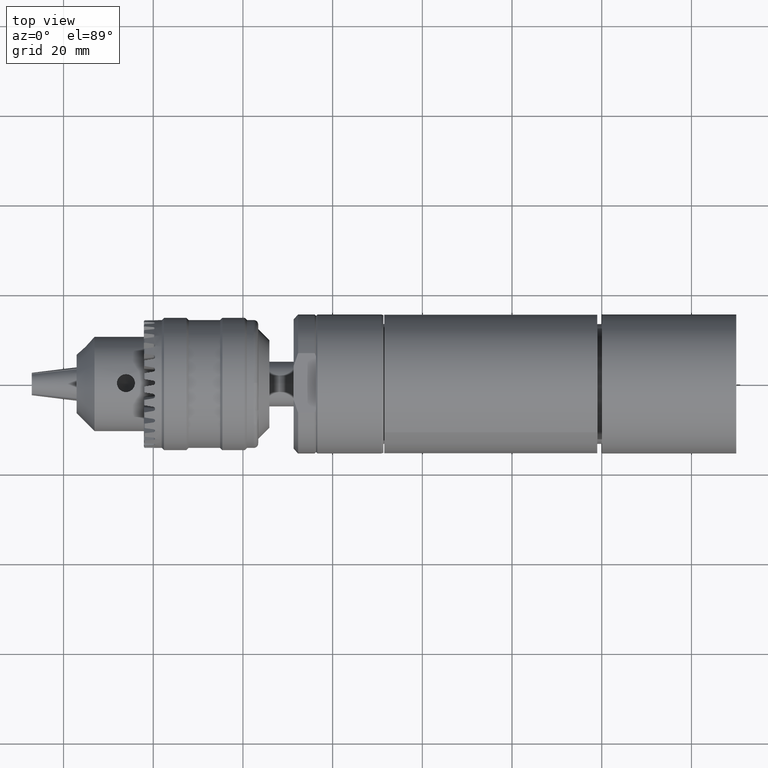
[diagram: clean part render]
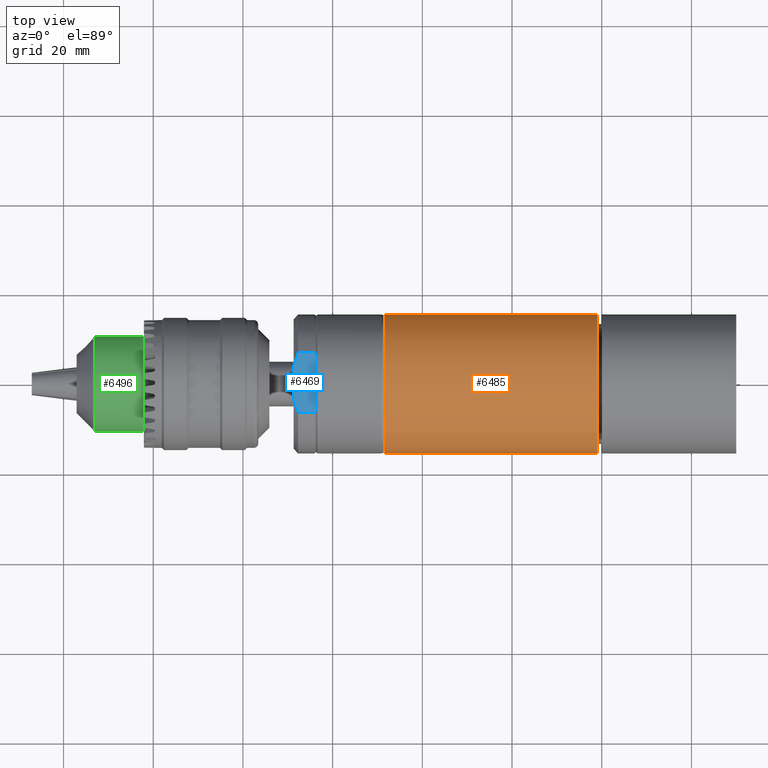
[diagram: same view with three faces highlighted in distinct colors, each labeled with its STEP entity id]
A machine part, top view with three faces highlighted in distinct colors.
Their STEP definitions:

[orange] entity #6485 — the highlighted cylindrical surface (bore or boss wall) has radius 15.5 mm, axis along (1, 0, 0).
#481=LINE('',#9968,#976);
#976=VECTOR('',#7922,15.5);
#1276=CYLINDRICAL_SURFACE('',#6897,15.5);
#1801=FACE_OUTER_BOUND('',#2162,.T.);
#2162=EDGE_LOOP('',(#4828,#4829,#4830,#4831,#4832,#4833));
#2458=CIRCLE('',#6895,15.5);
#2459=CIRCLE('',#6896,15.5);
#2460=CIRCLE('',#6898,15.5);
#2461=CIRCLE('',#6899,15.5);
#2862=VERTEX_POINT('',#9959);
#2863=VERTEX_POINT('',#9960);
#2864=VERTEX_POINT('',#9964);
#2865=VERTEX_POINT('',#9965);
#3590=EDGE_CURVE('',#2862,#2863,#2458,.T.);
#3591=EDGE_CURVE('',#2863,#2862,#2459,.T.);
#3592=EDGE_CURVE('',#2864,#2865,#2460,.T.);
#3593=EDGE_CURVE('',#2865,#2864,#2461,.T.);
#3594=EDGE_CURVE('',#2865,#2863,#481,.T.);
#4828=ORIENTED_EDGE('',*,*,#3592,.F.);
#4829=ORIENTED_EDGE('',*,*,#3593,.F.);
#4830=ORIENTED_EDGE('',*,*,#3594,.T.);
#4831=ORIENTED_EDGE('',*,*,#3591,.T.);
#4832=ORIENTED_EDGE('',*,*,#3590,.T.);
#4833=ORIENTED_EDGE('',*,*,#3594,.F.);
#6485=ADVANCED_FACE('',(#1801),#1276,.T.);
#6895=AXIS2_PLACEMENT_3D('',#9961,#7912,#7913);
#6896=AXIS2_PLACEMENT_3D('',#9962,#7914,#7915);
#6897=AXIS2_PLACEMENT_3D('',#9963,#7916,#7917);
#6898=AXIS2_PLACEMENT_3D('',#9966,#7918,#7919);
#6899=AXIS2_PLACEMENT_3D('',#9967,#7920,#7921);
#7912=DIRECTION('center_axis',(1.,5.25479465073326E-16,4.02107479538517E-16));
#7913=DIRECTION('ref_axis',(9.1590702158168E-17,0.707106781186548,-0.707106781186548));
#7914=DIRECTION('center_axis',(1.,5.25479465073326E-16,4.02107479538517E-16));
#7915=DIRECTION('ref_axis',(9.1590702158168E-17,0.707106781186548,-0.707106781186548));
#7916=DIRECTION('center_axis',(1.,5.25479465073326E-16,4.02107479538517E-16));
#7917=DIRECTION('ref_axis',(9.1590702158168E-17,0.707106781186548,-0.707106781186547));
#7918=DIRECTION('center_axis',(1.,5.25479465073326E-16,4.02107479538517E-16));
#7919=DIRECTION('ref_axis',(9.1590702158168E-17,0.707106781186548,-0.707106781186547));
#7920=DIRECTION('center_axis',(1.,5.25479465073326E-16,4.02107479538517E-16));
#7921=DIRECTION('ref_axis',(9.1590702158168E-17,0.707106781186548,-0.707106781186547));
#7922=DIRECTION('',(-1.,-5.25479465073326E-16,-4.02107479538517E-16));
#9959=CARTESIAN_POINT('',(-48.5,10.9601551083915,-10.9601551083915));
#9960=CARTESIAN_POINT('',(-48.5,-10.9601551083915,10.9601551083915));
#9961=CARTESIAN_POINT('Origin',(-48.5,7.09397277848991E-15,5.42845097376998E-15));
#9962=CARTESIAN_POINT('Origin',(-48.5,7.09397277848991E-15,5.42845097376998E-15));
#9963=CARTESIAN_POINT('Origin',(-24.75,1.95741100739814E-14,1.49785036128098E-14));
#9964=CARTESIAN_POINT('',(-0.999999999999979,10.9601551083915,-10.9601551083915));
#9965=CARTESIAN_POINT('',(-0.999999999999979,-10.9601551083915,10.9601551083915));
#9966=CARTESIAN_POINT('Origin',(-0.999999999999979,3.20542473694729E-14,
2.45285562518495E-14));
#9967=CARTESIAN_POINT('Origin',(-0.999999999999979,3.20542473694729E-14,
2.45285562518495E-14));
#9968=CARTESIAN_POINT('',(-24.75,-10.9601551083915,10.9601551083915));

[blue] entity #6469 — the highlighted planar face has unit normal (0, -0, -1).
#149=(
BOUNDED_CURVE()
B_SPLINE_CURVE(2,(#9884,#9885,#9886),.UNSPECIFIED.,.F.,.F.)
B_SPLINE_CURVE_WITH_KNOTS((3,3),(0.,0.0791681565710261),.UNSPECIFIED.)
CURVE()
GEOMETRIC_REPRESENTATION_ITEM()
RATIONAL_B_SPLINE_CURVE((1.,1.00028485378662,1.))
REPRESENTATION_ITEM('')
);
#150=(
BOUNDED_CURVE()
B_SPLINE_CURVE(2,(#9890,#9891,#9892),.UNSPECIFIED.,.F.,.F.)
B_SPLINE_CURVE_WITH_KNOTS((3,3),(0.,0.304814584649611),.UNSPECIFIED.)
CURVE()
GEOMETRIC_REPRESENTATION_ITEM()
RATIONAL_B_SPLINE_CURVE((1.,1.00463085467902,1.))
REPRESENTATION_ITEM('')
);
#151=(
BOUNDED_CURVE()
B_SPLINE_CURVE(2,(#9896,#9897,#9898),.UNSPECIFIED.,.F.,.F.)
B_SPLINE_CURVE_WITH_KNOTS((3,3),(0.,0.304814584649611),.UNSPECIFIED.)
CURVE()
GEOMETRIC_REPRESENTATION_ITEM()
RATIONAL_B_SPLINE_CURVE((1.,1.00463085467902,1.))
REPRESENTATION_ITEM('')
);
#152=(
BOUNDED_CURVE()
B_SPLINE_CURVE(2,(#9901,#9902,#9903),.UNSPECIFIED.,.F.,.F.)
B_SPLINE_CURVE_WITH_KNOTS((3,3),(0.,0.0791681565710261),.UNSPECIFIED.)
CURVE()
GEOMETRIC_REPRESENTATION_ITEM()
RATIONAL_B_SPLINE_CURVE((1.,1.00028485378662,1.))
REPRESENTATION_ITEM('')
);
#471=LINE('',#9881,#966);
#472=LINE('',#9888,#967);
#473=LINE('',#9894,#968);
#474=LINE('',#9900,#969);
#966=VECTOR('',#7828,10.);
#967=VECTOR('',#7831,10.);
#968=VECTOR('',#7832,10.);
#969=VECTOR('',#7833,10.);
#1785=FACE_OUTER_BOUND('',#2143,.T.);
#2143=EDGE_LOOP('',(#4745,#4746,#4747,#4748,#4749,#4750,#4751,#4752));
#2841=VERTEX_POINT('',#9878);
#2842=VERTEX_POINT('',#9879);
#2843=VERTEX_POINT('',#9883);
#2844=VERTEX_POINT('',#9887);
#2845=VERTEX_POINT('',#9889);
#2846=VERTEX_POINT('',#9893);
#2847=VERTEX_POINT('',#9895);
#2848=VERTEX_POINT('',#9899);
#3555=EDGE_CURVE('',#2841,#2842,#471,.T.);
#3556=EDGE_CURVE('',#2843,#2841,#149,.T.);
#3557=EDGE_CURVE('',#2844,#2843,#472,.T.);
#3558=EDGE_CURVE('',#2845,#2844,#150,.T.);
#3559=EDGE_CURVE('',#2846,#2845,#473,.T.);
#3560=EDGE_CURVE('',#2847,#2846,#151,.T.);
#3561=EDGE_CURVE('',#2848,#2847,#474,.T.);
#3562=EDGE_CURVE('',#2842,#2848,#152,.T.);
#4745=ORIENTED_EDGE('',*,*,#3556,.F.);
#4746=ORIENTED_EDGE('',*,*,#3557,.F.);
#4747=ORIENTED_EDGE('',*,*,#3558,.F.);
#4748=ORIENTED_EDGE('',*,*,#3559,.F.);
#4749=ORIENTED_EDGE('',*,*,#3560,.F.);
#4750=ORIENTED_EDGE('',*,*,#3561,.F.);
#4751=ORIENTED_EDGE('',*,*,#3562,.F.);
#4752=ORIENTED_EDGE('',*,*,#3555,.F.);
#6232=PLANE('',#6858);
#6469=ADVANCED_FACE('',(#1785),#6232,.F.);
#6858=AXIS2_PLACEMENT_3D('',#9882,#7829,#7830);
#7828=DIRECTION('',(9.54437786248571E-17,-1.,1.7185860833431E-16));
#7829=DIRECTION('center_axis',(1.48561984064731E-15,-1.7185860833431E-16,
-1.));
#7830=DIRECTION('ref_axis',(-1.,-9.54437786248573E-17,-1.48561984064731E-15));
#7831=DIRECTION('',(1.,9.54437786248573E-17,1.48561984064731E-15));
#7832=DIRECTION('',(-9.54437786248571E-17,1.,-1.7185860833431E-16));
#7833=DIRECTION('',(-1.,-9.54437786248573E-17,-1.48561984064731E-15));
#9878=CARTESIAN_POINT('',(-63.7,5.91945943477948,14.));
#9879=CARTESIAN_POINT('',(-63.7,-5.91945943477948,14.));
#9881=CARTESIAN_POINT('',(-63.6999999999999,-14.2828568570857,14.));
#9882=CARTESIAN_POINT('Origin',(-68.7,14.2828568570857,14.));
#9883=CARTESIAN_POINT('',(-64.,6.65206734782504,14.));
#9884=CARTESIAN_POINT('Ctrl Pts',(-64.,6.65206734782504,14.));
#9885=CARTESIAN_POINT('Ctrl Pts',(-63.841258723872,6.28218387381187,14.));
#9886=CARTESIAN_POINT('Ctrl Pts',(-63.7,5.91945943477949,14.));
#9887=CARTESIAN_POINT('',(-67.6999999999999,6.65206734782504,14.));
#9888=CARTESIAN_POINT('',(-66.35,6.65206734782504,14.));
#9889=CARTESIAN_POINT('',(-68.7,3.77491721763537,14.));
#9890=CARTESIAN_POINT('Ctrl Pts',(-68.7,3.77491721763537,14.));
#9891=CARTESIAN_POINT('Ctrl Pts',(-68.3379665478608,5.16553978056039,14.));
#9892=CARTESIAN_POINT('Ctrl Pts',(-67.6999999999999,6.65206734782504,14.));
#9893=CARTESIAN_POINT('',(-68.7,-3.77491721763536,14.));
#9894=CARTESIAN_POINT('',(-68.7,12.3289284285429,14.));
#9895=CARTESIAN_POINT('',(-67.6999999999999,-6.65206734782503,14.));
#9896=CARTESIAN_POINT('Ctrl Pts',(-67.6999999999999,-6.65206734782503,14.));
#9897=CARTESIAN_POINT('Ctrl Pts',(-68.3379665478608,-5.16553978056039,14.));
#9898=CARTESIAN_POINT('Ctrl Pts',(-68.7,-3.77491721763536,14.));
#9899=CARTESIAN_POINT('',(-64.,-6.65206734782503,14.));
#9900=CARTESIAN_POINT('',(-66.35,-6.65206734782503,14.));
#9901=CARTESIAN_POINT('Ctrl Pts',(-63.7,-5.91945943477949,14.));
#9902=CARTESIAN_POINT('Ctrl Pts',(-63.841258723872,-6.28218387381186,14.));
#9903=CARTESIAN_POINT('Ctrl Pts',(-64.,-6.65206734782503,14.));

[green] entity #6496 — the highlighted cylindrical surface (bore or boss wall) has radius 10.5 mm, axis along (1, 0, -0).
#97=B_SPLINE_CURVE_WITH_KNOTS('',3,(#10097,#10098,#10099,#10100,#10101,
#10102,#10103,#10104,#10105,#10106),.UNSPECIFIED.,.F.,.F.,(4,2,2,2,4),(0.,
0.0755378860497664,0.151075772099533,0.226610188264522,0.302144604429511),
 .UNSPECIFIED.);
#98=B_SPLINE_CURVE_WITH_KNOTS('',3,(#10107,#10108,#10109,#10110,#10111,
#10112,#10113,#10114,#10115,#10116,#10117,#10118,#10119,#10120,#10121,#10122,
#10123,#10124,#10125,#10126,#10127,#10128,#10129,#10130,#10131,#10132),
 .UNSPECIFIED.,.F.,.F.,(4,2,2,2,2,2,2,2,2,2,2,2,4),(0.302144604429511,0.377679020594501,
0.45321343675949,0.528751322809257,0.604289208859023,0.679827094908789,
0.755364980958556,0.830899397123545,0.906433813288534,0.981968229453524,
1.05750264561851,1.13304053166828,1.20857841771805),.UNSPECIFIED.);
#99=B_SPLINE_CURVE_WITH_KNOTS('',3,(#10135,#10136,#10137,#10138,#10139,
#10140,#10141,#10142,#10143,#10144),.UNSPECIFIED.,.F.,.F.,(4,2,2,2,4),(0.,
0.0755378860497664,0.151075772099533,0.226610188264522,0.302144604429512),
 .UNSPECIFIED.);
#100=B_SPLINE_CURVE_WITH_KNOTS('',3,(#10145,#10146,#10147,#10148,#10149,
#10150,#10151,#10152,#10153,#10154,#10155,#10156,#10157,#10158,#10159,#10160,
#10161,#10162,#10163,#10164,#10165,#10166,#10167,#10168,#10169,#10170),
 .UNSPECIFIED.,.F.,.F.,(4,2,2,2,2,2,2,2,2,2,2,2,4),(0.302144604429512,0.377679020594501,
0.45321343675949,0.528751322809257,0.604289208859023,0.67982709490879,0.755364980958556,
0.830899397123546,0.906433813288535,0.981968229453524,1.05750264561851,
1.13304053166828,1.20857841771805),.UNSPECIFIED.);
#101=B_SPLINE_CURVE_WITH_KNOTS('',3,(#10173,#10174,#10175,#10176,#10177,
#10178,#10179,#10180,#10181,#10182),.UNSPECIFIED.,.F.,.F.,(4,2,2,2,4),(0.,
0.0755378860497664,0.151075772099533,0.226610188264522,0.302144604429512),
 .UNSPECIFIED.);
#102=B_SPLINE_CURVE_WITH_KNOTS('',3,(#10183,#10184,#10185,#10186,#10187,
#10188,#10189,#10190,#10191,#10192,#10193,#10194,#10195,#10196,#10197,#10198,
#10199,#10200,#10201,#10202,#10203,#10204,#10205,#10206,#10207,#10208),
 .UNSPECIFIED.,.F.,.F.,(4,2,2,2,2,2,2,2,2,2,2,2,4),(0.302144604429512,0.377679020594501,
0.45321343675949,0.528751322809257,0.604289208859023,0.67982709490879,0.755364980958556,
0.830899397123545,0.906433813288535,0.981968229453524,1.05750264561851,
1.13304053166828,1.20857841771805),.UNSPECIFIED.);
#489=LINE('',#10081,#984);
#984=VECTOR('',#8044,10.5);
#1280=CYLINDRICAL_SURFACE('',#6932,10.5);
#1683=FACE_BOUND('',#2177,.T.);
#1684=FACE_BOUND('',#2178,.T.);
#1685=FACE_BOUND('',#2179,.T.);
#1812=FACE_OUTER_BOUND('',#2176,.T.);
#2176=EDGE_LOOP('',(#4886,#4887,#4888,#4889,#4890,#4891,#4892,#4893,#4894,
#4895,#4896,#4897,#4898,#4899,#4900,#4901,#4902,#4903,#4904,#4905,#4906,
#4907,#4908,#4909,#4910,#4911,#4912,#4913,#4914,#4915,#4916,#4917,#4918,
#4919,#4920));
#2177=EDGE_LOOP('',(#4921,#4922));
#2178=EDGE_LOOP('',(#4923,#4924));
#2179=EDGE_LOOP('',(#4925,#4926));
#2480=CIRCLE('',#6928,10.5);
#2481=CIRCLE('',#6929,10.5);
#2484=CIRCLE('',#6933,10.5);
#2485=CIRCLE('',#6934,10.5);
#2486=CIRCLE('',#6935,10.5);
#2487=CIRCLE('',#6936,10.5);
#2488=CIRCLE('',#6937,10.5);
#2489=CIRCLE('',#6938,10.5);
#2490=CIRCLE('',#6939,10.5);
#2491=CIRCLE('',#6940,10.5);
#2492=CIRCLE('',#6941,10.5);
#2493=CIRCLE('',#6942,10.5);
#2494=CIRCLE('',#6943,10.5);
#2495=CIRCLE('',#6944,10.5);
#2496=CIRCLE('',#6945,10.5);
#2497=CIRCLE('',#6946,10.5);
#2498=CIRCLE('',#6947,10.5);
#2499=CIRCLE('',#6948,10.5);
#2500=CIRCLE('',#6949,10.5);
#2501=CIRCLE('',#6950,10.5);
#2502=CIRCLE('',#6951,10.5);
#2503=CIRCLE('',#6952,10.5);
#2504=CIRCLE('',#6953,10.5);
#2505=CIRCLE('',#6954,10.5);
#2506=CIRCLE('',#6955,10.5);
#2507=CIRCLE('',#6956,10.5);
#2508=CIRCLE('',#6957,10.5);
#2509=CIRCLE('',#6958,10.5);
#2510=CIRCLE('',#6959,10.5);
#2511=CIRCLE('',#6960,10.5);
#2512=CIRCLE('',#6961,10.5);
#2513=CIRCLE('',#6962,10.5);
#2514=CIRCLE('',#6963,10.5);
#2885=VERTEX_POINT('',#10022);
#2886=VERTEX_POINT('',#10023);
#2889=VERTEX_POINT('',#10032);
#2890=VERTEX_POINT('',#10033);
#2891=VERTEX_POINT('',#10035);
#2892=VERTEX_POINT('',#10037);
#2893=VERTEX_POINT('',#10039);
#2894=VERTEX_POINT('',#10041);
#2895=VERTEX_POINT('',#10043);
#2896=VERTEX_POINT('',#10045);
#2897=VERTEX_POINT('',#10047);
#2898=VERTEX_POINT('',#10049);
#2899=VERTEX_POINT('',#10051);
#2900=VERTEX_POINT('',#10053);
#2901=VERTEX_POINT('',#10055);
#2902=VERTEX_POINT('',#10057);
#2903=VERTEX_POINT('',#10059);
#2904=VERTEX_POINT('',#10061);
#2905=VERTEX_POINT('',#10063);
#2906=VERTEX_POINT('',#10065);
#2907=VERTEX_POINT('',#10067);
#2908=VERTEX_POINT('',#10069);
#2909=VERTEX_POINT('',#10071);
#2910=VERTEX_POINT('',#10073);
#2911=VERTEX_POINT('',#10075);
#2912=VERTEX_POINT('',#10077);
#2913=VERTEX_POINT('',#10079);
#2914=VERTEX_POINT('',#10082);
#2915=VERTEX_POINT('',#10084);
#2916=VERTEX_POINT('',#10086);
#2917=VERTEX_POINT('',#10088);
#2918=VERTEX_POINT('',#10090);
#2919=VERTEX_POINT('',#10092);
#2920=VERTEX_POINT('',#10095);
#2921=VERTEX_POINT('',#10096);
#2922=VERTEX_POINT('',#10133);
#2923=VERTEX_POINT('',#10134);
#2924=VERTEX_POINT('',#10171);
#2925=VERTEX_POINT('',#10172);
#3619=EDGE_CURVE('',#2885,#2886,#2480,.T.);
#3620=EDGE_CURVE('',#2886,#2885,#2481,.T.);
#3624=EDGE_CURVE('',#2889,#2890,#2484,.T.);
#3625=EDGE_CURVE('',#2891,#2889,#2485,.T.);
#3626=EDGE_CURVE('',#2892,#2891,#2486,.T.);
#3627=EDGE_CURVE('',#2893,#2892,#2487,.T.);
#3628=EDGE_CURVE('',#2894,#2893,#2488,.T.);
#3629=EDGE_CURVE('',#2895,#2894,#2489,.T.);
#3630=EDGE_CURVE('',#2896,#2895,#2490,.T.);
#3631=EDGE_CURVE('',#2897,#2896,#2491,.T.);
#3632=EDGE_CURVE('',#2898,#2897,#2492,.T.);
#3633=EDGE_CURVE('',#2899,#2898,#2493,.T.);
#3634=EDGE_CURVE('',#2900,#2899,#2494,.T.);
#3635=EDGE_CURVE('',#2901,#2900,#2495,.T.);
#3636=EDGE_CURVE('',#2902,#2901,#2496,.T.);
#3637=EDGE_CURVE('',#2903,#2902,#2497,.T.);
#3638=EDGE_CURVE('',#2904,#2903,#2498,.T.);
#3639=EDGE_CURVE('',#2905,#2904,#2499,.T.);
#3640=EDGE_CURVE('',#2906,#2905,#2500,.T.);
#3641=EDGE_CURVE('',#2907,#2906,#2501,.T.);
#3642=EDGE_CURVE('',#2908,#2907,#2502,.T.);
#3643=EDGE_CURVE('',#2909,#2908,#2503,.T.);
#3644=EDGE_CURVE('',#2910,#2909,#2504,.T.);
#3645=EDGE_CURVE('',#2911,#2910,#2505,.T.);
#3646=EDGE_CURVE('',#2912,#2911,#2506,.T.);
#3647=EDGE_CURVE('',#2913,#2912,#2507,.T.);
#3648=EDGE_CURVE('',#2913,#2886,#489,.T.);
#3649=EDGE_CURVE('',#2914,#2913,#2508,.T.);
#3650=EDGE_CURVE('',#2915,#2914,#2509,.T.);
#3651=EDGE_CURVE('',#2916,#2915,#2510,.T.);
#3652=EDGE_CURVE('',#2917,#2916,#2511,.T.);
#3653=EDGE_CURVE('',#2918,#2917,#2512,.T.);
#3654=EDGE_CURVE('',#2919,#2918,#2513,.T.);
#3655=EDGE_CURVE('',#2890,#2919,#2514,.T.);
#3656=EDGE_CURVE('',#2920,#2921,#97,.T.);
#3657=EDGE_CURVE('',#2921,#2920,#98,.T.);
#3658=EDGE_CURVE('',#2922,#2923,#99,.T.);
#3659=EDGE_CURVE('',#2923,#2922,#100,.T.);
#3660=EDGE_CURVE('',#2924,#2925,#101,.T.);
#3661=EDGE_CURVE('',#2925,#2924,#102,.T.);
#4886=ORIENTED_EDGE('',*,*,#3624,.F.);
#4887=ORIENTED_EDGE('',*,*,#3625,.F.);
#4888=ORIENTED_EDGE('',*,*,#3626,.F.);
#4889=ORIENTED_EDGE('',*,*,#3627,.F.);
#4890=ORIENTED_EDGE('',*,*,#3628,.F.);
#4891=ORIENTED_EDGE('',*,*,#3629,.F.);
#4892=ORIENTED_EDGE('',*,*,#3630,.F.);
#4893=ORIENTED_EDGE('',*,*,#3631,.F.);
#4894=ORIENTED_EDGE('',*,*,#3632,.F.);
#4895=ORIENTED_EDGE('',*,*,#3633,.F.);
#4896=ORIENTED_EDGE('',*,*,#3634,.F.);
#4897=ORIENTED_EDGE('',*,*,#3635,.F.);
#4898=ORIENTED_EDGE('',*,*,#3636,.F.);
#4899=ORIENTED_EDGE('',*,*,#3637,.F.);
#4900=ORIENTED_EDGE('',*,*,#3638,.F.);
#4901=ORIENTED_EDGE('',*,*,#3639,.F.);
#4902=ORIENTED_EDGE('',*,*,#3640,.F.);
#4903=ORIENTED_EDGE('',*,*,#3641,.F.);
#4904=ORIENTED_EDGE('',*,*,#3642,.F.);
#4905=ORIENTED_EDGE('',*,*,#3643,.F.);
#4906=ORIENTED_EDGE('',*,*,#3644,.F.);
#4907=ORIENTED_EDGE('',*,*,#3645,.F.);
#4908=ORIENTED_EDGE('',*,*,#3646,.F.);
#4909=ORIENTED_EDGE('',*,*,#3647,.F.);
#4910=ORIENTED_EDGE('',*,*,#3648,.T.);
#4911=ORIENTED_EDGE('',*,*,#3620,.T.);
#4912=ORIENTED_EDGE('',*,*,#3619,.T.);
#4913=ORIENTED_EDGE('',*,*,#3648,.F.);
#4914=ORIENTED_EDGE('',*,*,#3649,.F.);
#4915=ORIENTED_EDGE('',*,*,#3650,.F.);
#4916=ORIENTED_EDGE('',*,*,#3651,.F.);
#4917=ORIENTED_EDGE('',*,*,#3652,.F.);
#4918=ORIENTED_EDGE('',*,*,#3653,.F.);
#4919=ORIENTED_EDGE('',*,*,#3654,.F.);
#4920=ORIENTED_EDGE('',*,*,#3655,.F.);
#4921=ORIENTED_EDGE('',*,*,#3656,.T.);
#4922=ORIENTED_EDGE('',*,*,#3657,.T.);
#4923=ORIENTED_EDGE('',*,*,#3658,.T.);
#4924=ORIENTED_EDGE('',*,*,#3659,.T.);
#4925=ORIENTED_EDGE('',*,*,#3660,.T.);
#4926=ORIENTED_EDGE('',*,*,#3661,.T.);
#6496=ADVANCED_FACE('',(#1812,#1683,#1684,#1685),#1280,.T.);
#6928=AXIS2_PLACEMENT_3D('',#10024,#7985,#7986);
#6929=AXIS2_PLACEMENT_3D('',#10025,#7987,#7988);
#6932=AXIS2_PLACEMENT_3D('',#10031,#7994,#7995);
#6933=AXIS2_PLACEMENT_3D('',#10034,#7996,#7997);
#6934=AXIS2_PLACEMENT_3D('',#10036,#7998,#7999);
#6935=AXIS2_PLACEMENT_3D('',#10038,#8000,#8001);
#6936=AXIS2_PLACEMENT_3D('',#10040,#8002,#8003);
#6937=AXIS2_PLACEMENT_3D('',#10042,#8004,#8005);
#6938=AXIS2_PLACEMENT_3D('',#10044,#8006,#8007);
#6939=AXIS2_PLACEMENT_3D('',#10046,#8008,#8009);
#6940=AXIS2_PLACEMENT_3D('',#10048,#8010,#8011);
#6941=AXIS2_PLACEMENT_3D('',#10050,#8012,#8013);
#6942=AXIS2_PLACEMENT_3D('',#10052,#8014,#8015);
#6943=AXIS2_PLACEMENT_3D('',#10054,#8016,#8017);
#6944=AXIS2_PLACEMENT_3D('',#10056,#8018,#8019);
#6945=AXIS2_PLACEMENT_3D('',#10058,#8020,#8021);
#6946=AXIS2_PLACEMENT_3D('',#10060,#8022,#8023);
#6947=AXIS2_PLACEMENT_3D('',#10062,#8024,#8025);
#6948=AXIS2_PLACEMENT_3D('',#10064,#8026,#8027);
#6949=AXIS2_PLACEMENT_3D('',#10066,#8028,#8029);
#6950=AXIS2_PLACEMENT_3D('',#10068,#8030,#8031);
#6951=AXIS2_PLACEMENT_3D('',#10070,#8032,#8033);
#6952=AXIS2_PLACEMENT_3D('',#10072,#8034,#8035);
#6953=AXIS2_PLACEMENT_3D('',#10074,#8036,#8037);
#6954=AXIS2_PLACEMENT_3D('',#10076,#8038,#8039);
#6955=AXIS2_PLACEMENT_3D('',#10078,#8040,#8041);
#6956=AXIS2_PLACEMENT_3D('',#10080,#8042,#8043);
#6957=AXIS2_PLACEMENT_3D('',#10083,#8045,#8046);
#6958=AXIS2_PLACEMENT_3D('',#10085,#8047,#8048);
#6959=AXIS2_PLACEMENT_3D('',#10087,#8049,#8050);
#6960=AXIS2_PLACEMENT_3D('',#10089,#8051,#8052);
#6961=AXIS2_PLACEMENT_3D('',#10091,#8053,#8054);
#6962=AXIS2_PLACEMENT_3D('',#10093,#8055,#8056);
#6963=AXIS2_PLACEMENT_3D('',#10094,#8057,#8058);
#7985=DIRECTION('center_axis',(1.,2.45022473231302E-16,-9.49410759657492E-16));
#7986=DIRECTION('ref_axis',(-6.12323399573692E-17,1.,-8.38142190496947E-16));
#7987=DIRECTION('center_axis',(1.,2.45022473231302E-16,-9.49410759657492E-16));
#7988=DIRECTION('ref_axis',(-6.12323399573692E-17,1.,-8.38142190496947E-16));
#7994=DIRECTION('center_axis',(1.,2.45022473231302E-16,-9.49410759657492E-16));
#7995=DIRECTION('ref_axis',(-6.12323399573692E-17,1.,-8.38142190496947E-16));
#7996=DIRECTION('center_axis',(1.,2.45022473231302E-16,-9.49410759657492E-16));
#7997=DIRECTION('ref_axis',(-6.12323399573692E-17,1.,-8.38142190496947E-16));
#7998=DIRECTION('center_axis',(1.,2.45022473231302E-16,-9.49410759657492E-16));
#7999=DIRECTION('ref_axis',(-6.12323399573692E-17,1.,-8.38142190496947E-16));
#8000=DIRECTION('center_axis',(1.,2.45022473231302E-16,-9.49410759657492E-16));
#8001=DIRECTION('ref_axis',(-6.12323399573692E-17,1.,-8.38142190496947E-16));
#8002=DIRECTION('center_axis',(1.,2.45022473231302E-16,-9.49410759657492E-16));
#8003=DIRECTION('ref_axis',(-6.12323399573692E-17,1.,-8.38142190496947E-16));
#8004=DIRECTION('center_axis',(1.,2.45022473231302E-16,-9.49410759657492E-16));
#8005=DIRECTION('ref_axis',(-6.12323399573692E-17,1.,-8.38142190496947E-16));
#8006=DIRECTION('center_axis',(1.,2.45022473231302E-16,-9.49410759657492E-16));
#8007=DIRECTION('ref_axis',(-6.12323399573692E-17,1.,-8.38142190496947E-16));
#8008=DIRECTION('center_axis',(1.,2.45022473231302E-16,-9.49410759657492E-16));
#8009=DIRECTION('ref_axis',(-6.12323399573692E-17,1.,-8.38142190496947E-16));
#8010=DIRECTION('center_axis',(1.,2.45022473231302E-16,-9.49410759657492E-16));
#8011=DIRECTION('ref_axis',(-6.12323399573692E-17,1.,-8.38142190496947E-16));
#8012=DIRECTION('center_axis',(1.,2.45022473231302E-16,-9.49410759657492E-16));
#8013=DIRECTION('ref_axis',(-6.12323399573692E-17,1.,-8.38142190496947E-16));
#8014=DIRECTION('center_axis',(1.,2.45022473231302E-16,-9.49410759657492E-16));
#8015=DIRECTION('ref_axis',(-6.12323399573692E-17,1.,-8.38142190496947E-16));
#8016=DIRECTION('center_axis',(1.,2.45022473231302E-16,-9.49410759657492E-16));
#8017=DIRECTION('ref_axis',(-6.12323399573692E-17,1.,-8.38142190496947E-16));
#8018=DIRECTION('center_axis',(1.,2.45022473231302E-16,-9.49410759657492E-16));
#8019=DIRECTION('ref_axis',(-6.12323399573692E-17,1.,-8.38142190496947E-16));
#8020=DIRECTION('center_axis',(1.,2.45022473231302E-16,-9.49410759657492E-16));
#8021=DIRECTION('ref_axis',(-6.12323399573692E-17,1.,-8.38142190496947E-16));
#8022=DIRECTION('center_axis',(1.,2.45022473231302E-16,-9.49410759657492E-16));
#8023=DIRECTION('ref_axis',(-6.12323399573692E-17,1.,-8.38142190496947E-16));
#8024=DIRECTION('center_axis',(1.,2.45022473231302E-16,-9.49410759657492E-16));
#8025=DIRECTION('ref_axis',(-6.12323399573692E-17,1.,-8.38142190496947E-16));
#8026=DIRECTION('center_axis',(1.,2.45022473231302E-16,-9.49410759657492E-16));
#8027=DIRECTION('ref_axis',(-6.12323399573692E-17,1.,-8.38142190496947E-16));
#8028=DIRECTION('center_axis',(1.,2.45022473231302E-16,-9.49410759657492E-16));
#8029=DIRECTION('ref_axis',(-6.12323399573692E-17,1.,-8.38142190496947E-16));
#8030=DIRECTION('center_axis',(1.,2.45022473231302E-16,-9.49410759657492E-16));
#8031=DIRECTION('ref_axis',(-6.12323399573692E-17,1.,-8.38142190496947E-16));
#8032=DIRECTION('center_axis',(1.,2.45022473231302E-16,-9.49410759657492E-16));
#8033=DIRECTION('ref_axis',(-6.12323399573692E-17,1.,-8.38142190496947E-16));
#8034=DIRECTION('center_axis',(1.,2.45022473231302E-16,-9.49410759657492E-16));
#8035=DIRECTION('ref_axis',(-6.12323399573692E-17,1.,-8.38142190496947E-16));
#8036=DIRECTION('center_axis',(1.,2.45022473231302E-16,-9.49410759657492E-16));
#8037=DIRECTION('ref_axis',(-6.12323399573692E-17,1.,-8.38142190496947E-16));
#8038=DIRECTION('center_axis',(1.,2.45022473231302E-16,-9.49410759657492E-16));
#8039=DIRECTION('ref_axis',(-6.12323399573692E-17,1.,-8.38142190496947E-16));
#8040=DIRECTION('center_axis',(1.,2.45022473231302E-16,-9.49410759657492E-16));
#8041=DIRECTION('ref_axis',(-6.12323399573692E-17,1.,-8.38142190496947E-16));
#8042=DIRECTION('center_axis',(1.,2.45022473231302E-16,-9.49410759657492E-16));
#8043=DIRECTION('ref_axis',(-6.12323399573692E-17,1.,-8.38142190496947E-16));
#8044=DIRECTION('',(-1.,-2.45022473231302E-16,9.49410759657492E-16));
#8045=DIRECTION('center_axis',(1.,2.45022473231302E-16,-9.49410759657492E-16));
#8046=DIRECTION('ref_axis',(-6.12323399573692E-17,1.,-8.38142190496947E-16));
#8047=DIRECTION('center_axis',(1.,2.45022473231302E-16,-9.49410759657492E-16));
#8048=DIRECTION('ref_axis',(-6.12323399573692E-17,1.,-8.38142190496947E-16));
#8049=DIRECTION('center_axis',(1.,2.45022473231302E-16,-9.49410759657492E-16));
#8050=DIRECTION('ref_axis',(-6.12323399573692E-17,1.,-8.38142190496947E-16));
#8051=DIRECTION('center_axis',(1.,2.45022473231302E-16,-9.49410759657492E-16));
#8052=DIRECTION('ref_axis',(-6.12323399573692E-17,1.,-8.38142190496947E-16));
#8053=DIRECTION('center_axis',(1.,2.45022473231302E-16,-9.49410759657492E-16));
#8054=DIRECTION('ref_axis',(-6.12323399573692E-17,1.,-8.38142190496947E-16));
#8055=DIRECTION('center_axis',(1.,2.45022473231302E-16,-9.49410759657492E-16));
#8056=DIRECTION('ref_axis',(-6.12323399573692E-17,1.,-8.38142190496947E-16));
#8057=DIRECTION('center_axis',(1.,2.45022473231302E-16,-9.49410759657492E-16));
#8058=DIRECTION('ref_axis',(-6.12323399573692E-17,1.,-8.38142190496947E-16));
#10022=CARTESIAN_POINT('',(-113.095626420429,10.5,-2.20922436354228E-14));
#10023=CARTESIAN_POINT('',(-113.095626420429,-10.5,-5.77713677409167E-15));
#10024=CARTESIAN_POINT('Origin',(-113.095626420429,3.43031462523823E-15,
-1.32917506352049E-14));
#10025=CARTESIAN_POINT('Origin',(-113.095626420429,3.43031462523823E-15,
-1.32917506352049E-14));
#10031=CARTESIAN_POINT('Origin',(-107.595626420429,4.77793822801039E-15,
-1.85135098133211E-14));
#10032=CARTESIAN_POINT('',(-102.095626420429,1.49260548310005E-14,10.5));
#10033=CARTESIAN_POINT('',(-102.095626420429,-2.18307275358646,10.2705498077049));
#10034=CARTESIAN_POINT('Origin',(-102.095626420429,6.12556183078256E-15,
-2.37352689914373E-14));
#10035=CARTESIAN_POINT('',(-102.095626420429,2.1830727535865,10.2705498077049));
#10036=CARTESIAN_POINT('Origin',(-102.095626420429,6.12556183078256E-15,
-2.37352689914373E-14));
#10037=CARTESIAN_POINT('',(-102.095626420429,4.27073475229593,9.59222730524728));
#10038=CARTESIAN_POINT('Origin',(-102.095626420429,6.12556183078256E-15,
-2.37352689914373E-14));
#10039=CARTESIAN_POINT('',(-102.095626420429,6.17174514907099,8.49467844093692));
#10040=CARTESIAN_POINT('Origin',(-102.095626420429,6.12556183078256E-15,
-2.37352689914373E-14));
#10041=CARTESIAN_POINT('',(-102.095626420429,7.80302066751266,7.02587136676798));
#10042=CARTESIAN_POINT('Origin',(-102.095626420429,6.12556183078256E-15,
-2.37352689914373E-14));
#10043=CARTESIAN_POINT('',(-102.095626420429,9.09326673973662,5.24999999999996));
#10044=CARTESIAN_POINT('Origin',(-102.095626420429,6.12556183078256E-15,
-2.37352689914373E-14));
#10045=CARTESIAN_POINT('',(-102.095626420429,9.98609342109912,3.24467844093691));
#10046=CARTESIAN_POINT('Origin',(-102.095626420429,6.12556183078256E-15,
-2.37352689914373E-14));
#10047=CARTESIAN_POINT('',(-102.095626420429,10.4424799013669,1.09754886431032));
#10048=CARTESIAN_POINT('Origin',(-102.095626420429,6.12556183078256E-15,
-2.37352689914373E-14));
#10049=CARTESIAN_POINT('',(-102.095626420429,10.4424799013669,-1.0975488643104));
#10050=CARTESIAN_POINT('Origin',(-102.095626420429,6.12556183078256E-15,
-2.37352689914373E-14));
#10051=CARTESIAN_POINT('',(-102.095626420429,9.98609342109912,-3.24467844093698));
#10052=CARTESIAN_POINT('Origin',(-102.095626420429,6.12556183078256E-15,
-2.37352689914373E-14));
#10053=CARTESIAN_POINT('',(-102.095626420429,9.09326673973661,-5.25000000000004));
#10054=CARTESIAN_POINT('Origin',(-102.095626420429,6.12556183078256E-15,
-2.37352689914373E-14));
#10055=CARTESIAN_POINT('',(-102.095626420429,7.80302066751264,-7.02587136676805));
#10056=CARTESIAN_POINT('Origin',(-102.095626420429,6.12556183078256E-15,
-2.37352689914373E-14));
#10057=CARTESIAN_POINT('',(-102.095626420429,6.17174514907097,-8.49467844093698));
#10058=CARTESIAN_POINT('Origin',(-102.095626420429,6.12556183078256E-15,
-2.37352689914373E-14));
#10059=CARTESIAN_POINT('',(-102.095626420429,4.2707347522959,-9.59222730524735));
#10060=CARTESIAN_POINT('Origin',(-102.095626420429,6.12556183078256E-15,
-2.37352689914373E-14));
#10061=CARTESIAN_POINT('',(-102.095626420429,2.18307275358647,-10.270549807705));
#10062=CARTESIAN_POINT('Origin',(-102.095626420429,6.12556183078256E-15,
-2.37352689914373E-14));
#10063=CARTESIAN_POINT('',(-102.095626420429,-3.5492318013277E-15,-10.5));
#10064=CARTESIAN_POINT('Origin',(-102.095626420429,6.12556183078256E-15,
-2.37352689914373E-14));
#10065=CARTESIAN_POINT('',(-102.095626420429,-2.18307275358648,-10.270549807705));
#10066=CARTESIAN_POINT('Origin',(-102.095626420429,6.12556183078256E-15,
-2.37352689914373E-14));
#10067=CARTESIAN_POINT('',(-102.095626420429,-4.27073475229591,-9.59222730524734));
#10068=CARTESIAN_POINT('Origin',(-102.095626420429,6.12556183078256E-15,
-2.37352689914373E-14));
#10069=CARTESIAN_POINT('',(-102.095626420429,-6.17174514907098,-8.49467844093697));
#10070=CARTESIAN_POINT('Origin',(-102.095626420429,6.12556183078256E-15,
-2.37352689914373E-14));
#10071=CARTESIAN_POINT('',(-102.095626420429,-7.80302066751265,-7.02587136676803));
#10072=CARTESIAN_POINT('Origin',(-102.095626420429,6.12556183078256E-15,
-2.37352689914373E-14));
#10073=CARTESIAN_POINT('',(-102.095626420429,-9.09326673973662,-5.25000000000002));
#10074=CARTESIAN_POINT('Origin',(-102.095626420429,6.12556183078256E-15,
-2.37352689914373E-14));
#10075=CARTESIAN_POINT('',(-102.095626420429,-9.98609342109912,-3.24467844093697));
#10076=CARTESIAN_POINT('Origin',(-102.095626420429,6.12556183078256E-15,
-2.37352689914373E-14));
#10077=CARTESIAN_POINT('',(-102.095626420429,-10.4424799013669,-1.09754886431038));
#10078=CARTESIAN_POINT('Origin',(-102.095626420429,6.12556183078256E-15,
-2.37352689914373E-14));
#10079=CARTESIAN_POINT('',(-102.095626420429,-10.5,-1.62206551303241E-14));
#10080=CARTESIAN_POINT('Origin',(-102.095626420429,6.12556183078256E-15,
-2.37352689914373E-14));
#10081=CARTESIAN_POINT('',(-107.595626420429,-10.5,-1.09988959522079E-14));
#10082=CARTESIAN_POINT('',(-102.095626420429,-10.4424799013669,1.09754886431035));
#10083=CARTESIAN_POINT('Origin',(-102.095626420429,6.12556183078256E-15,
-2.37352689914373E-14));
#10084=CARTESIAN_POINT('',(-102.095626420429,-9.98609342109912,3.24467844093694));
#10085=CARTESIAN_POINT('Origin',(-102.095626420429,6.12556183078256E-15,
-2.37352689914373E-14));
#10086=CARTESIAN_POINT('',(-102.095626420429,-9.09326673973661,5.24999999999999));
#10087=CARTESIAN_POINT('Origin',(-102.095626420429,6.12556183078256E-15,
-2.37352689914373E-14));
#10088=CARTESIAN_POINT('',(-102.095626420429,-7.80302066751264,7.025871366768));
#10089=CARTESIAN_POINT('Origin',(-102.095626420429,6.12556183078256E-15,
-2.37352689914373E-14));
#10090=CARTESIAN_POINT('',(-102.095626420429,-6.17174514907096,8.49467844093694));
#10091=CARTESIAN_POINT('Origin',(-102.095626420429,6.12556183078256E-15,
-2.37352689914373E-14));
#10092=CARTESIAN_POINT('',(-102.095626420429,-4.27073475229589,9.5922273052473));
#10093=CARTESIAN_POINT('Origin',(-102.095626420429,6.12556183078256E-15,
-2.37352689914373E-14));
#10094=CARTESIAN_POINT('Origin',(-102.095626420429,6.12556183078256E-15,
-2.37352689914373E-14));
#10095=CARTESIAN_POINT('',(-106.095626420429,9.92678553567856,-3.42183122445323));
#10096=CARTESIAN_POINT('',(-108.095626420429,9.09326673973661,-5.25000000000003));
#10097=CARTESIAN_POINT('Ctrl Pts',(-106.095626420429,9.92678553567856,-3.42183122445324));
#10098=CARTESIAN_POINT('Ctrl Pts',(-106.347419373928,9.92678553567856,-3.42183122445324));
#10099=CARTESIAN_POINT('Ctrl Pts',(-106.615562798938,9.91037984384701,-3.47061074257102));
#10100=CARTESIAN_POINT('Ctrl Pts',(-107.108131943581,9.8398541441407,-3.66579293293226));
#10101=CARTESIAN_POINT('Ctrl Pts',(-107.332612200146,9.78526895579121,-3.81188948781517));
#10102=CARTESIAN_POINT('Ctrl Pts',(-107.687059624378,9.64976900973509,-4.14293918907157));
#10103=CARTESIAN_POINT('Ctrl Pts',(-107.840881926494,9.55967186581055,-4.35013305704577));
#10104=CARTESIAN_POINT('Ctrl Pts',(-108.045182140541,9.34459402084399,-4.79474153403915));
#10105=CARTESIAN_POINT('Ctrl Pts',(-108.095626420429,9.21915743334492,-5.03195092247034));
#10106=CARTESIAN_POINT('Ctrl Pts',(-108.095626420429,9.0932667397366,-5.25000000000003));
#10107=CARTESIAN_POINT('Ctrl Pts',(-108.095626420429,9.0932667397366,-5.25000000000003));
#10108=CARTESIAN_POINT('Ctrl Pts',(-108.095626420429,8.96737604612829,-5.46804907752972));
#10109=CARTESIAN_POINT('Ctrl Pts',(-108.045182140541,8.82466498348024,-5.69528504308354));
#10110=CARTESIAN_POINT('Ctrl Pts',(-107.840881926494,8.54716167014934,-6.10385215911248));
#10111=CARTESIAN_POINT('Ctrl Pts',(-107.687059624378,8.41277508893759,-6.28547550854666));
#10112=CARTESIAN_POINT('Ctrl Pts',(-107.332612200146,8.19382761076236,-6.56834675467088));
#10113=CARTESIAN_POINT('Ctrl Pts',(-107.108131943581,8.09459687700312,-6.68866719189335));
#10114=CARTESIAN_POINT('Ctrl Pts',(-106.615562798938,7.96082699163715,-6.84733533463931));
#10115=CARTESIAN_POINT('Ctrl Pts',(-106.347419373928,7.92678553567856,-6.88593283959098));
#10116=CARTESIAN_POINT('Ctrl Pts',(-105.84383346693,7.92678553567856,-6.88593283959098));
#10117=CARTESIAN_POINT('Ctrl Pts',(-105.57569004192,7.96082699163715,-6.84733533463931));
#10118=CARTESIAN_POINT('Ctrl Pts',(-105.083120897277,8.09459687700312,-6.68866719189335));
#10119=CARTESIAN_POINT('Ctrl Pts',(-104.858640640712,8.19382761076236,-6.56834675467088));
#10120=CARTESIAN_POINT('Ctrl Pts',(-104.50419321648,8.4127750889376,-6.28547550854667));
#10121=CARTESIAN_POINT('Ctrl Pts',(-104.350370914364,8.54716167014935,-6.10385215911249));
#10122=CARTESIAN_POINT('Ctrl Pts',(-104.146070700317,8.82466498348024,-5.69528504308354));
#10123=CARTESIAN_POINT('Ctrl Pts',(-104.095626420429,8.96737604612829,-5.46804907752972));
#10124=CARTESIAN_POINT('Ctrl Pts',(-104.095626420429,9.21915743334492,-5.03195092247035));
#10125=CARTESIAN_POINT('Ctrl Pts',(-104.146070700317,9.34459402084399,-4.79474153403916));
#10126=CARTESIAN_POINT('Ctrl Pts',(-104.350370914364,9.55967186581056,-4.35013305704578));
#10127=CARTESIAN_POINT('Ctrl Pts',(-104.50419321648,9.64976900973509,-4.14293918907157));
#10128=CARTESIAN_POINT('Ctrl Pts',(-104.858640640712,9.78526895579121,-3.81188948781517));
#10129=CARTESIAN_POINT('Ctrl Pts',(-105.083120897277,9.8398541441407,-3.66579293293226));
#10130=CARTESIAN_POINT('Ctrl Pts',(-105.57569004192,9.91037984384701,-3.47061074257102));
#10131=CARTESIAN_POINT('Ctrl Pts',(-105.84383346693,9.92678553567857,-3.42183122445323));
#10132=CARTESIAN_POINT('Ctrl Pts',(-106.095626420429,9.92678553567857,-3.42183122445323));
#10133=CARTESIAN_POINT('',(-106.095626420429,-7.92678553567857,-6.88593283959096));
#10134=CARTESIAN_POINT('',(-108.095626420429,-9.09326673973661,-5.25000000000001));
#10135=CARTESIAN_POINT('Ctrl Pts',(-106.095626420429,-7.92678553567857,
-6.88593283959097));
#10136=CARTESIAN_POINT('Ctrl Pts',(-106.347419373928,-7.92678553567857,
-6.88593283959097));
#10137=CARTESIAN_POINT('Ctrl Pts',(-106.615562798938,-7.96082699163716,
-6.84733533463929));
#10138=CARTESIAN_POINT('Ctrl Pts',(-107.108131943581,-8.09459687700313,
-6.68866719189333));
#10139=CARTESIAN_POINT('Ctrl Pts',(-107.332612200146,-8.19382761076237,
-6.56834675467086));
#10140=CARTESIAN_POINT('Ctrl Pts',(-107.687059624378,-8.4127750889376,-6.28547550854664));
#10141=CARTESIAN_POINT('Ctrl Pts',(-107.840881926494,-8.54716167014935,
-6.10385215911246));
#10142=CARTESIAN_POINT('Ctrl Pts',(-108.045182140541,-8.82466498348025,
-5.69528504308351));
#10143=CARTESIAN_POINT('Ctrl Pts',(-108.095626420429,-8.96737604612829,
-5.46804907752969));
#10144=CARTESIAN_POINT('Ctrl Pts',(-108.095626420429,-9.09326673973661,
-5.25000000000001));
#10145=CARTESIAN_POINT('Ctrl Pts',(-108.095626420429,-9.09326673973661,
-5.25000000000001));
#10146=CARTESIAN_POINT('Ctrl Pts',(-108.095626420429,-9.21915743334492,
-5.03195092247032));
#10147=CARTESIAN_POINT('Ctrl Pts',(-108.045182140541,-9.34459402084399,
-4.79474153403913));
#10148=CARTESIAN_POINT('Ctrl Pts',(-107.840881926494,-9.55967186581056,
-4.35013305704574));
#10149=CARTESIAN_POINT('Ctrl Pts',(-107.687059624378,-9.6497690097351,-4.14293918907154));
#10150=CARTESIAN_POINT('Ctrl Pts',(-107.332612200146,-9.78526895579122,
-3.81188948781514));
#10151=CARTESIAN_POINT('Ctrl Pts',(-107.108131943581,-9.8398541441407,-3.66579293293223));
#10152=CARTESIAN_POINT('Ctrl Pts',(-106.615562798938,-9.91037984384701,
-3.47061074257099));
#10153=CARTESIAN_POINT('Ctrl Pts',(-106.347419373928,-9.92678553567857,
-3.42183122445321));
#10154=CARTESIAN_POINT('Ctrl Pts',(-105.84383346693,-9.92678553567857,-3.42183122445321));
#10155=CARTESIAN_POINT('Ctrl Pts',(-105.57569004192,-9.91037984384701,-3.47061074257099));
#10156=CARTESIAN_POINT('Ctrl Pts',(-105.083120897277,-9.8398541441407,-3.66579293293223));
#10157=CARTESIAN_POINT('Ctrl Pts',(-104.858640640712,-9.78526895579122,
-3.81188948781514));
#10158=CARTESIAN_POINT('Ctrl Pts',(-104.50419321648,-9.6497690097351,-4.14293918907155));
#10159=CARTESIAN_POINT('Ctrl Pts',(-104.350370914364,-9.55967186581056,
-4.35013305704575));
#10160=CARTESIAN_POINT('Ctrl Pts',(-104.146070700317,-9.34459402084399,
-4.79474153403913));
#10161=CARTESIAN_POINT('Ctrl Pts',(-104.095626420429,-9.21915743334493,
-5.03195092247032));
#10162=CARTESIAN_POINT('Ctrl Pts',(-104.095626420429,-8.96737604612829,
-5.4680490775297));
#10163=CARTESIAN_POINT('Ctrl Pts',(-104.146070700317,-8.82466498348024,
-5.69528504308351));
#10164=CARTESIAN_POINT('Ctrl Pts',(-104.350370914364,-8.54716167014935,
-6.10385215911246));
#10165=CARTESIAN_POINT('Ctrl Pts',(-104.50419321648,-8.4127750889376,-6.28547550854664));
#10166=CARTESIAN_POINT('Ctrl Pts',(-104.858640640712,-8.19382761076237,
-6.56834675467086));
#10167=CARTESIAN_POINT('Ctrl Pts',(-105.083120897277,-8.09459687700312,
-6.68866719189333));
#10168=CARTESIAN_POINT('Ctrl Pts',(-105.57569004192,-7.96082699163716,-6.84733533463929));
#10169=CARTESIAN_POINT('Ctrl Pts',(-105.84383346693,-7.92678553567857,-6.88593283959096));
#10170=CARTESIAN_POINT('Ctrl Pts',(-106.095626420429,-7.92678553567857,
-6.88593283959096));
#10171=CARTESIAN_POINT('',(-106.095626420429,-1.99999999999999,10.3077640640441));
#10172=CARTESIAN_POINT('',(-108.095626420429,9.71897809957848E-15,10.5));
#10173=CARTESIAN_POINT('Ctrl Pts',(-106.095626420429,-1.99999999999999,
10.3077640640441));
#10174=CARTESIAN_POINT('Ctrl Pts',(-106.347419373928,-1.99999999999999,
10.3077640640441));
#10175=CARTESIAN_POINT('Ctrl Pts',(-106.615562798938,-1.94955285220985,
10.3179460772102));
#10176=CARTESIAN_POINT('Ctrl Pts',(-107.108131943581,-1.74525726713757,
10.3544601248255));
#10177=CARTESIAN_POINT('Ctrl Pts',(-107.332612200146,-1.59144134502884,
10.380236242486));
#10178=CARTESIAN_POINT('Ctrl Pts',(-107.687059624378,-1.23699392079749,
10.4284146976181));
#10179=CARTESIAN_POINT('Ctrl Pts',(-107.840881926494,-1.0125101956612,10.4539852161582));
#10180=CARTESIAN_POINT('Ctrl Pts',(-108.045182140541,-0.519929037363737,
10.4900265771226));
#10181=CARTESIAN_POINT('Ctrl Pts',(-108.095626420429,-0.251781387216621,
10.5));
#10182=CARTESIAN_POINT('Ctrl Pts',(-108.095626420429,1.03389519168218E-14,
10.5));
#10183=CARTESIAN_POINT('Ctrl Pts',(-108.095626420429,1.04777297948999E-14,
10.5));
#10184=CARTESIAN_POINT('Ctrl Pts',(-108.095626420429,0.251781387216642,
10.5));
#10185=CARTESIAN_POINT('Ctrl Pts',(-108.045182140541,0.519929037363757,
10.4900265771226));
#10186=CARTESIAN_POINT('Ctrl Pts',(-107.840881926494,1.01251019566122,10.4539852161582));
#10187=CARTESIAN_POINT('Ctrl Pts',(-107.687059624378,1.23699392079751,10.4284146976182));
#10188=CARTESIAN_POINT('Ctrl Pts',(-107.332612200146,1.59144134502886,10.380236242486));
#10189=CARTESIAN_POINT('Ctrl Pts',(-107.108131943581,1.74525726713759,10.3544601248255));
#10190=CARTESIAN_POINT('Ctrl Pts',(-106.615562798938,1.94955285220987,10.3179460772102));
#10191=CARTESIAN_POINT('Ctrl Pts',(-106.347419373928,2.00000000000001,10.3077640640441));
#10192=CARTESIAN_POINT('Ctrl Pts',(-105.84383346693,2.00000000000001,10.3077640640441));
#10193=CARTESIAN_POINT('Ctrl Pts',(-105.57569004192,1.94955285220987,10.3179460772102));
#10194=CARTESIAN_POINT('Ctrl Pts',(-105.083120897277,1.74525726713759,10.3544601248255));
#10195=CARTESIAN_POINT('Ctrl Pts',(-104.858640640712,1.59144134502886,10.380236242486));
#10196=CARTESIAN_POINT('Ctrl Pts',(-104.50419321648,1.23699392079751,10.4284146976181));
#10197=CARTESIAN_POINT('Ctrl Pts',(-104.350370914364,1.01251019566122,10.4539852161582));
#10198=CARTESIAN_POINT('Ctrl Pts',(-104.146070700317,0.519929037363755,
10.4900265771226));
#10199=CARTESIAN_POINT('Ctrl Pts',(-104.095626420429,0.251781387216642,
10.5));
#10200=CARTESIAN_POINT('Ctrl Pts',(-104.095626420429,-0.25178138721662,
10.5));
#10201=CARTESIAN_POINT('Ctrl Pts',(-104.146070700317,-0.519929037363733,
10.4900265771226));
#10202=CARTESIAN_POINT('Ctrl Pts',(-104.350370914364,-1.01251019566119,
10.4539852161582));
#10203=CARTESIAN_POINT('Ctrl Pts',(-104.50419321648,-1.23699392079748,10.4284146976181));
#10204=CARTESIAN_POINT('Ctrl Pts',(-104.858640640712,-1.59144134502884,
10.380236242486));
#10205=CARTESIAN_POINT('Ctrl Pts',(-105.083120897277,-1.74525726713757,
10.3544601248255));
#10206=CARTESIAN_POINT('Ctrl Pts',(-105.57569004192,-1.94955285220985,10.3179460772102));
#10207=CARTESIAN_POINT('Ctrl Pts',(-105.84383346693,-1.99999999999999,10.3077640640441));
#10208=CARTESIAN_POINT('Ctrl Pts',(-106.095626420429,-1.99999999999999,
10.3077640640441));